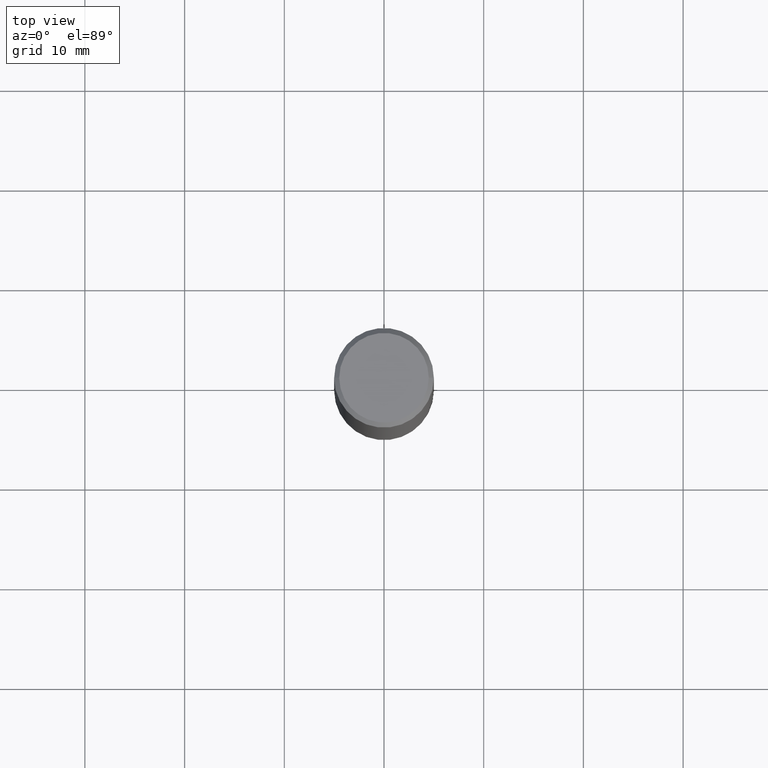
[diagram: clean part render]
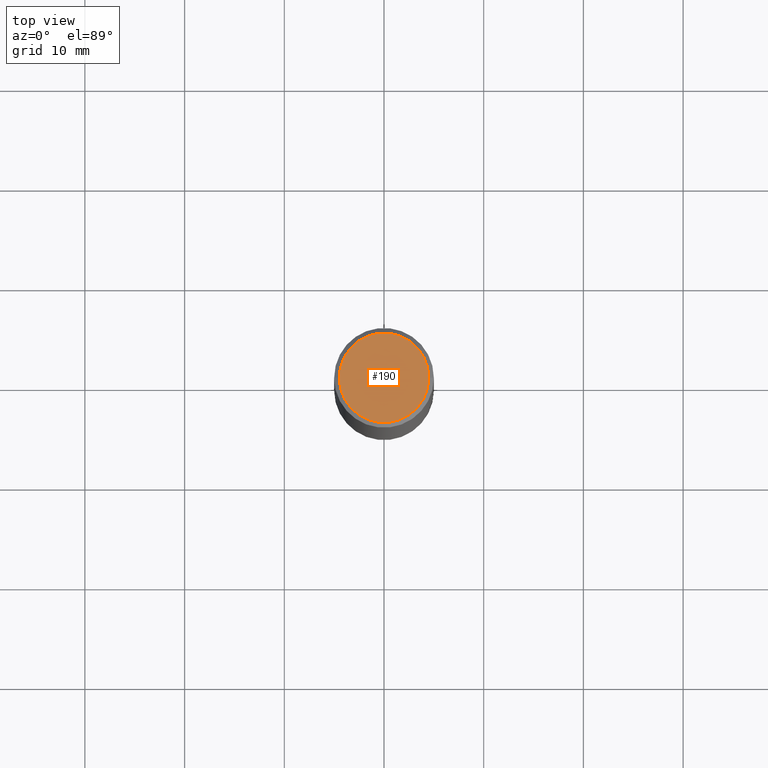
[diagram: same view with one face highlighted and labeled with its STEP entity id]
A machine part, top view. The second image highlights one B-rep face of the part: STEP entity #190.
In plain terms, the highlighted planar face has unit normal (0, -0, -1).
Its self-contained STEP definition (entity closure, byte-faithful):
#34 = FACE_OUTER_BOUND ( 'NONE', #96, .T. ) ;
#44 = CARTESIAN_POINT ( 'NONE',  ( -0.1768499999999997851, 1.269851762937246069E-15, 4.268512490091652920E-18 ) ) ;
#51 = ORIENTED_EDGE ( 'NONE', *, *, #222, .T. ) ;
#74 = DIRECTION ( 'NONE',  ( 1.000000000000000000, -6.982962677686266711E-15, 4.875932113059884174E-29 ) ) ;
#96 = EDGE_LOOP ( 'NONE', ( #257, #51 ) ) ;
#99 = AXIS2_PLACEMENT_3D ( 'NONE', #335, #128, #130 ) ;
#105 = CARTESIAN_POINT ( 'NONE',  ( -1.043851414335219820E-46, 1.490343170380447200E-32, 4.268512490100411279E-18 ) ) ;
#113 = EDGE_CURVE ( 'NONE', #118, #181, #134, .T. ) ;
#116 = AXIS2_PLACEMENT_3D ( 'NONE', #296, #121, #236 ) ;
#118 = VERTEX_POINT ( 'NONE', #44 ) ;
#121 = DIRECTION ( 'NONE',  ( 2.438088387897960049E-29, -3.491481338843145188E-15, -1.000000000000000000 ) ) ;
#128 = DIRECTION ( 'NONE',  ( -2.445468806185136597E-29, 3.491481338843145583E-15, 1.000000000000000000 ) ) ;
#130 = DIRECTION ( 'NONE',  ( 1.000000000000000000, -6.982962677686266711E-15, 4.875932113059884174E-29 ) ) ;
#134 = CIRCLE ( 'NONE', #352, 0.1768499999999997851 ) ;
#181 = VERTEX_POINT ( 'NONE', #232 ) ;
#190 = ADVANCED_FACE ( 'NONE', ( #34 ), #365, .F. ) ;
#205 = CIRCLE ( 'NONE', #99, 0.1768499999999997851 ) ;
#222 = EDGE_CURVE ( 'NONE', #181, #118, #205, .T. ) ;
#232 = CARTESIAN_POINT ( 'NONE',  ( 0.1768499999999997851, -1.316798864272040563E-15, 4.268512490109333727E-18 ) ) ;
#236 = DIRECTION ( 'NONE',  ( -1.000000000000000000, 6.982962677686265922E-15, -4.876176775795935793E-29 ) ) ;
#257 = ORIENTED_EDGE ( 'NONE', *, *, #113, .T. ) ;
#296 = CARTESIAN_POINT ( 'NONE',  ( 1.234936949548814617E-15, 0.1768499999999997851, -6.153342185293593634E-16 ) ) ;
#331 = DIRECTION ( 'NONE',  ( -2.445468806185136597E-29, 3.491481338843145583E-15, 1.000000000000000000 ) ) ;
#335 = CARTESIAN_POINT ( 'NONE',  ( -1.043851414335219820E-46, 1.490343170380447200E-32, 4.268512490100411279E-18 ) ) ;
#352 = AXIS2_PLACEMENT_3D ( 'NONE', #105, #331, #74 ) ;
#365 = PLANE ( 'NONE',  #116 ) ;